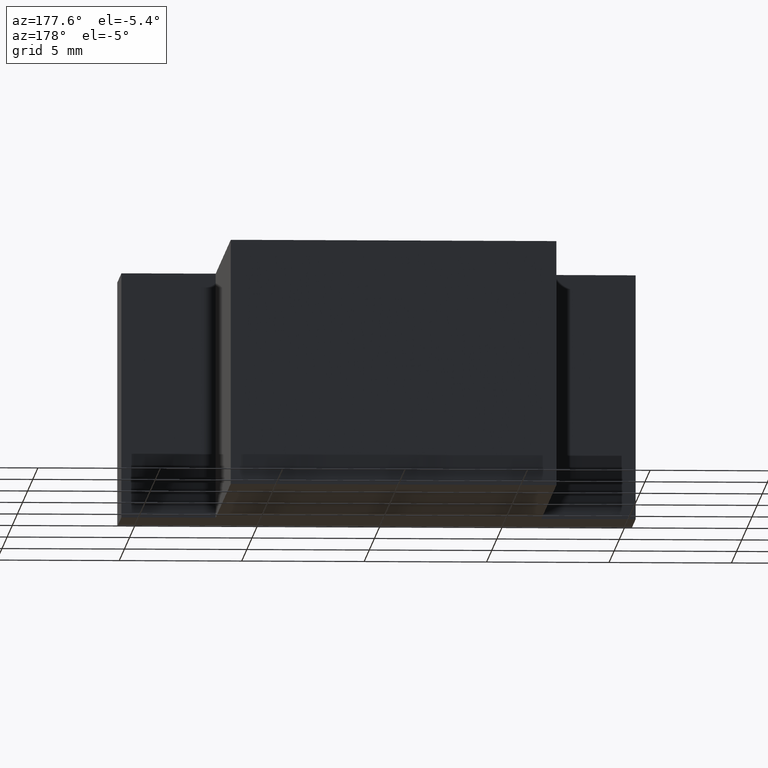
[diagram: clean part render]
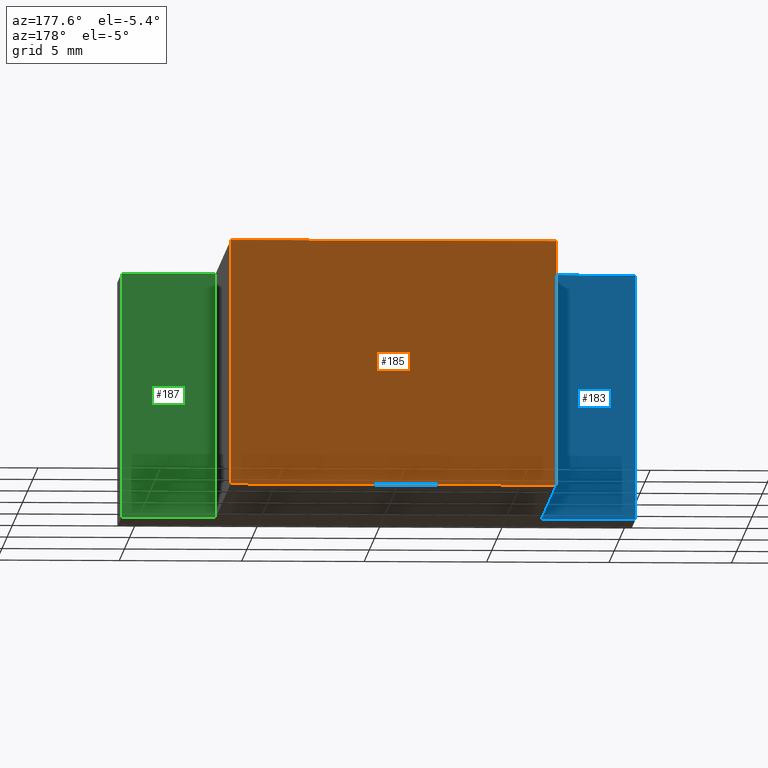
[diagram: same view with three faces highlighted in distinct colors, each labeled with its STEP entity id]
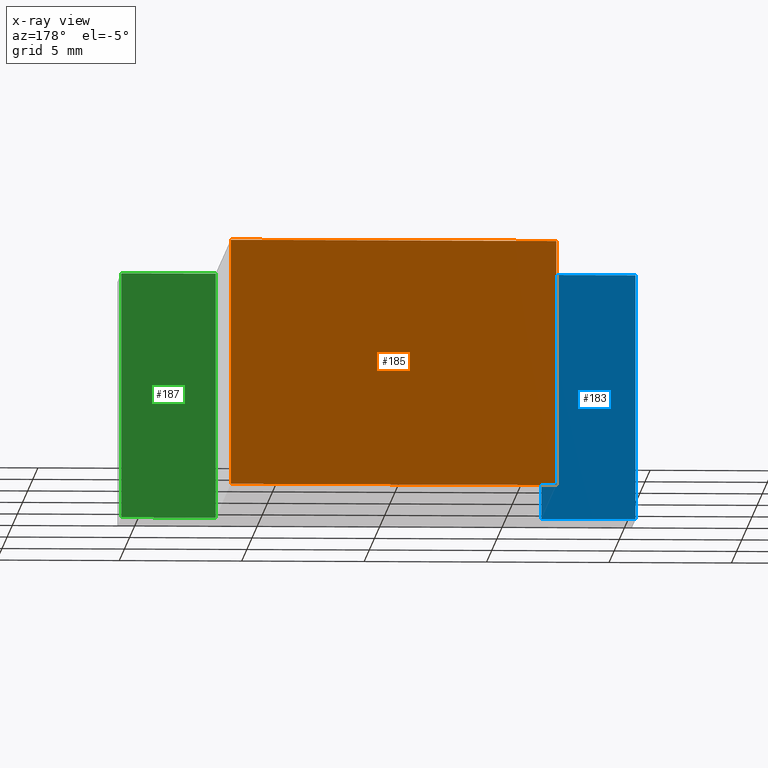
[diagram: x-ray of the same camera — body ghosted, the three highlighted faces saturated]
A machine part, auxiliary view with three faces highlighted in distinct colors.
The next image is the same camera in x-ray (body ghosted, the three faces saturated) — at least one of them is partly hidden behind the body in this view.
Their STEP definitions:

[orange] entity #185 — the highlighted planar face has unit normal (0, 1, 0).
#19=FACE_OUTER_BOUND('',#29,.T.);
#29=EDGE_LOOP('',(#143,#144,#145,#146));
#40=LINE('',#284,#64);
#49=LINE('',#301,#73);
#50=LINE('',#304,#74);
#51=LINE('',#305,#75);
#64=VECTOR('',#233,10.);
#73=VECTOR('',#248,10.);
#74=VECTOR('',#251,10.);
#75=VECTOR('',#252,10.);
#88=VERTEX_POINT('',#281);
#89=VERTEX_POINT('',#283);
#94=VERTEX_POINT('',#299);
#95=VERTEX_POINT('',#303);
#104=EDGE_CURVE('',#89,#88,#40,.T.);
#113=EDGE_CURVE('',#94,#88,#49,.T.);
#114=EDGE_CURVE('',#94,#95,#50,.T.);
#115=EDGE_CURVE('',#95,#89,#51,.T.);
#143=ORIENTED_EDGE('',*,*,#114,.T.);
#144=ORIENTED_EDGE('',*,*,#115,.T.);
#145=ORIENTED_EDGE('',*,*,#104,.T.);
#146=ORIENTED_EDGE('',*,*,#113,.F.);
#175=PLANE('',#218);
#185=ADVANCED_FACE('',(#19),#175,.T.);
#218=AXIS2_PLACEMENT_3D('',#302,#249,#250);
#233=DIRECTION('',(-1.,0.,0.));
#248=DIRECTION('',(0.,0.,-1.));
#249=DIRECTION('center_axis',(0.,1.,0.));
#250=DIRECTION('ref_axis',(0.,0.,1.));
#251=DIRECTION('',(1.,0.,0.));
#252=DIRECTION('',(0.,0.,-1.));
#281=CARTESIAN_POINT('',(-6.65,18.7,-5.));
#283=CARTESIAN_POINT('',(6.65,18.7,-5.));
#284=CARTESIAN_POINT('',(-6.65,18.7,-5.));
#299=CARTESIAN_POINT('',(-6.65,18.7,5.));
#301=CARTESIAN_POINT('',(-6.65,18.7,0.));
#302=CARTESIAN_POINT('Origin',(-6.65,18.7,0.));
#303=CARTESIAN_POINT('',(6.65,18.7,5.));
#304=CARTESIAN_POINT('',(-6.65,18.7,5.));
#305=CARTESIAN_POINT('',(6.65,18.7,0.));

[blue] entity #183 — the highlighted planar face has unit normal (-0, 1, 0).
#17=FACE_OUTER_BOUND('',#27,.T.);
#27=EDGE_LOOP('',(#135,#136,#137,#138));
#38=LINE('',#280,#62);
#44=LINE('',#292,#68);
#46=LINE('',#296,#70);
#47=LINE('',#297,#71);
#62=VECTOR('',#231,10.);
#68=VECTOR('',#239,10.);
#70=VECTOR('',#243,10.);
#71=VECTOR('',#244,10.);
#86=VERTEX_POINT('',#277);
#87=VERTEX_POINT('',#279);
#92=VERTEX_POINT('',#290);
#93=VERTEX_POINT('',#295);
#102=EDGE_CURVE('',#87,#86,#38,.T.);
#108=EDGE_CURVE('',#92,#86,#44,.T.);
#110=EDGE_CURVE('',#92,#93,#46,.T.);
#111=EDGE_CURVE('',#93,#87,#47,.T.);
#135=ORIENTED_EDGE('',*,*,#110,.T.);
#136=ORIENTED_EDGE('',*,*,#111,.T.);
#137=ORIENTED_EDGE('',*,*,#102,.T.);
#138=ORIENTED_EDGE('',*,*,#108,.F.);
#173=PLANE('',#216);
#183=ADVANCED_FACE('',(#17),#173,.T.);
#216=AXIS2_PLACEMENT_3D('',#294,#241,#242);
#231=DIRECTION('',(-1.,-2.88369616785755E-16,0.));
#239=DIRECTION('',(0.,0.,-1.));
#241=DIRECTION('center_axis',(-2.88369616785755E-16,1.,0.));
#242=DIRECTION('ref_axis',(0.,0.,1.));
#243=DIRECTION('',(1.,2.88369616785755E-16,0.));
#244=DIRECTION('',(0.,0.,-1.));
#277=CARTESIAN_POINT('',(-10.5,4.,-5.));
#279=CARTESIAN_POINT('',(-6.65,4.,-5.));
#280=CARTESIAN_POINT('',(-10.5,4.,-5.));
#290=CARTESIAN_POINT('',(-10.5,4.,5.));
#292=CARTESIAN_POINT('',(-10.5,4.,0.));
#294=CARTESIAN_POINT('Origin',(-10.5,4.,0.));
#295=CARTESIAN_POINT('',(-6.65,4.,5.));
#296=CARTESIAN_POINT('',(-10.5,4.,5.));
#297=CARTESIAN_POINT('',(-6.65,4.,0.));

[green] entity #187 — the highlighted planar face has unit normal (0, 1, 0).
#21=FACE_OUTER_BOUND('',#31,.T.);
#31=EDGE_LOOP('',(#151,#152,#153,#154));
#42=LINE('',#287,#66);
#53=LINE('',#309,#77);
#54=LINE('',#312,#78);
#55=LINE('',#313,#79);
#66=VECTOR('',#235,10.);
#77=VECTOR('',#256,10.);
#78=VECTOR('',#259,10.);
#79=VECTOR('',#260,10.);
#84=VERTEX_POINT('',#273);
#90=VERTEX_POINT('',#285);
#96=VERTEX_POINT('',#307);
#97=VERTEX_POINT('',#311);
#106=EDGE_CURVE('',#84,#90,#42,.T.);
#117=EDGE_CURVE('',#96,#90,#53,.T.);
#118=EDGE_CURVE('',#96,#97,#54,.T.);
#119=EDGE_CURVE('',#97,#84,#55,.T.);
#151=ORIENTED_EDGE('',*,*,#118,.T.);
#152=ORIENTED_EDGE('',*,*,#119,.T.);
#153=ORIENTED_EDGE('',*,*,#106,.T.);
#154=ORIENTED_EDGE('',*,*,#117,.F.);
#177=PLANE('',#220);
#187=ADVANCED_FACE('',(#21),#177,.T.);
#220=AXIS2_PLACEMENT_3D('',#310,#257,#258);
#235=DIRECTION('',(-1.,1.44184808392878E-16,0.));
#256=DIRECTION('',(0.,0.,-1.));
#257=DIRECTION('center_axis',(1.44184808392878E-16,1.,0.));
#258=DIRECTION('ref_axis',(0.,0.,1.));
#259=DIRECTION('',(1.,-1.44184808392878E-16,0.));
#260=DIRECTION('',(0.,0.,-1.));
#273=CARTESIAN_POINT('',(10.5,4.,-5.));
#285=CARTESIAN_POINT('',(6.65,4.,-5.));
#287=CARTESIAN_POINT('',(6.65,4.,-5.));
#307=CARTESIAN_POINT('',(6.65,4.,5.));
#309=CARTESIAN_POINT('',(6.65,4.,0.));
#310=CARTESIAN_POINT('Origin',(6.65,4.,0.));
#311=CARTESIAN_POINT('',(10.5,4.,5.));
#312=CARTESIAN_POINT('',(6.65,4.,5.));
#313=CARTESIAN_POINT('',(10.5,4.,0.));